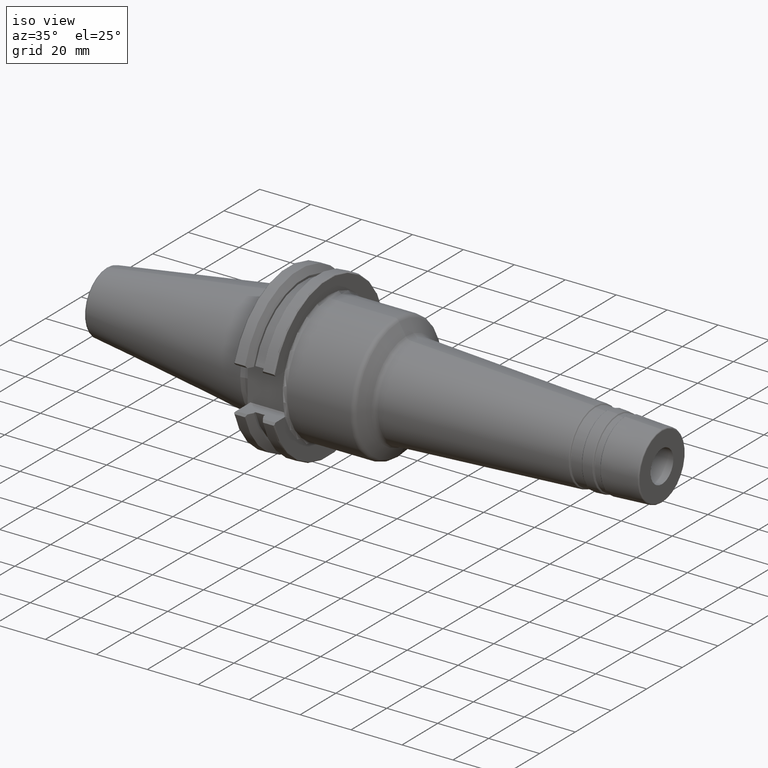
[diagram: clean part render]
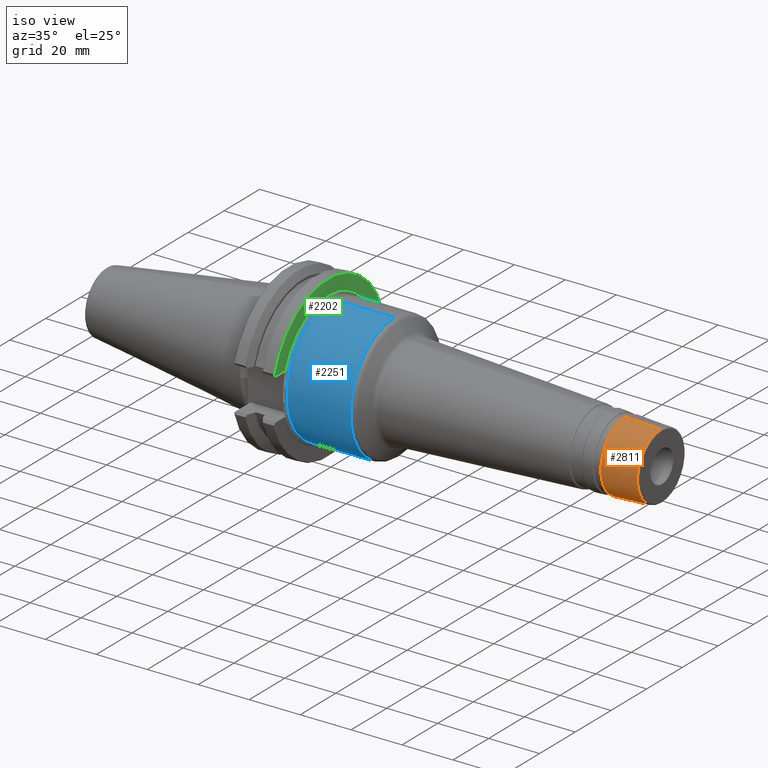
[diagram: same view with three faces highlighted in distinct colors, each labeled with its STEP entity id]
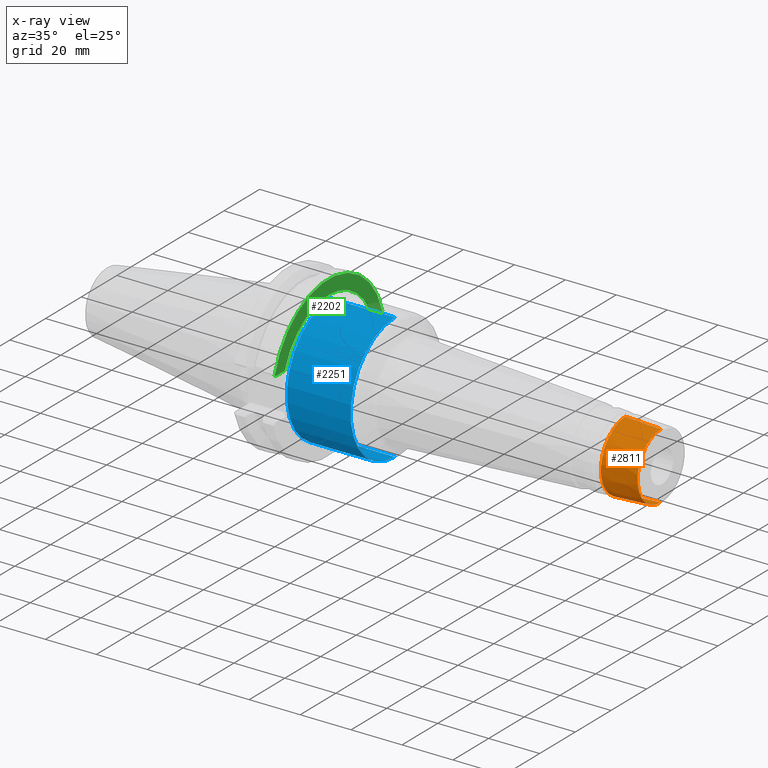
[diagram: x-ray of the same camera — body ghosted, the three highlighted faces saturated]
A machine part, iso view with three faces highlighted in distinct colors.
The next image is the same camera in x-ray (body ghosted, the three faces saturated) — at least one of them is partly hidden behind the body in this view.
Their STEP definitions:

[orange] entity #2811 — the highlighted conical surface has half-angle 3 deg.
#625=CARTESIAN_POINT('',(1.356592149338E2,0.E0,0.E0));
#626=DIRECTION('',(-1.E0,0.E0,0.E0));
#627=DIRECTION('',(0.E0,0.E0,-1.E0));
#628=AXIS2_PLACEMENT_3D('',#625,#626,#627);
#630=DIRECTION('',(-9.986295347546E-1,0.E0,-5.233595624294E-2));
#631=VECTOR('',#630,1.391101761050E1);
#632=CARTESIAN_POINT('',(1.495511679781E2,0.E0,-1.302483248402E1));
#633=LINE('',#632,#631);
#634=DIRECTION('',(-9.986295347546E-1,0.E0,5.233595624294E-2));
#635=VECTOR('',#634,1.391101761050E1);
#636=CARTESIAN_POINT('',(1.495511679781E2,0.E0,1.302483248402E1));
#637=LINE('',#636,#635);
#638=CARTESIAN_POINT('',(1.495511679781E2,0.E0,0.E0));
#639=DIRECTION('',(-1.E0,0.E0,0.E0));
#640=DIRECTION('',(0.E0,0.E0,-1.E0));
#641=AXIS2_PLACEMENT_3D('',#638,#639,#640);
#1729=CARTESIAN_POINT('',(1.495511679781E2,0.E0,-1.302483248402E1));
#1731=VERTEX_POINT('',#1729);
#1732=CARTESIAN_POINT('',(1.356592149338E2,0.E0,-1.375287889298E1));
#1733=VERTEX_POINT('',#1732);
#1785=CARTESIAN_POINT('',(1.495511679781E2,0.E0,1.302483248402E1));
#1787=VERTEX_POINT('',#1785);
#1788=CARTESIAN_POINT('',(1.356592149338E2,0.E0,1.375287889298E1));
#1789=VERTEX_POINT('',#1788);
#2797=CARTESIAN_POINT('',(1.426051914560E2,0.E0,0.E0));
#2798=DIRECTION('',(-1.E0,0.E0,0.E0));
#2799=DIRECTION('',(0.E0,0.E0,-1.E0));
#2800=AXIS2_PLACEMENT_3D('',#2797,#2798,#2799);
#2801=CONICAL_SURFACE('',#2800,1.338885568850E1,3.E0);
#2803=ORIENTED_EDGE('',*,*,#2802,.T.);
#2804=ORIENTED_EDGE('',*,*,#2792,.T.);
#2806=ORIENTED_EDGE('',*,*,#2805,.F.);
#2808=ORIENTED_EDGE('',*,*,#2807,.F.);
#2809=EDGE_LOOP('',(#2803,#2804,#2806,#2808));
#2810=FACE_OUTER_BOUND('',#2809,.F.);
#2811=ADVANCED_FACE('',(#2810),#2801,.T.);
#629=CIRCLE('',#628,1.375287889298E1);
#642=CIRCLE('',#641,1.302483248402E1);
#2792=EDGE_CURVE('',#1733,#1789,#629,.T.);
#2802=EDGE_CURVE('',#1731,#1733,#633,.T.);
#2805=EDGE_CURVE('',#1787,#1789,#637,.T.);
#2807=EDGE_CURVE('',#1731,#1787,#642,.T.);

[blue] entity #2251 — the highlighted cylindrical surface (partial cylindrical patch) has radius 24.75 mm, axis along (1, 0, 0).
#240=CARTESIAN_POINT('',(2.0075E1,0.E0,0.E0));
#241=DIRECTION('',(-1.E0,0.E0,0.E0));
#242=DIRECTION('',(0.E0,0.E0,-1.E0));
#243=AXIS2_PLACEMENT_3D('',#240,#241,#242);
#250=DIRECTION('',(-1.E0,0.E0,0.E0));
#251=VECTOR('',#250,2.503719834631E1);
#252=CARTESIAN_POINT('',(4.511219834631E1,0.E0,-2.475E1));
#253=LINE('',#252,#251);
#254=DIRECTION('',(-1.E0,0.E0,0.E0));
#255=VECTOR('',#254,2.503719834631E1);
#256=CARTESIAN_POINT('',(4.511219834631E1,0.E0,2.475E1));
#257=LINE('',#256,#255);
#258=CARTESIAN_POINT('',(4.511219834631E1,0.E0,0.E0));
#259=DIRECTION('',(-1.E0,0.E0,0.E0));
#260=DIRECTION('',(0.E0,0.E0,-1.E0));
#261=AXIS2_PLACEMENT_3D('',#258,#259,#260);
#1770=CARTESIAN_POINT('',(4.511219834631E1,0.E0,-2.475E1));
#1771=VERTEX_POINT('',#1770);
#1772=CARTESIAN_POINT('',(2.0075E1,0.E0,-2.475E1));
#1773=VERTEX_POINT('',#1772);
#1826=CARTESIAN_POINT('',(4.511219834631E1,0.E0,2.475E1));
#1827=VERTEX_POINT('',#1826);
#1828=CARTESIAN_POINT('',(2.0075E1,0.E0,2.475E1));
#1829=VERTEX_POINT('',#1828);
#2237=CARTESIAN_POINT('',(1.25275E1,0.E0,0.E0));
#2238=DIRECTION('',(1.E0,0.E0,0.E0));
#2239=DIRECTION('',(0.E0,0.E0,1.E0));
#2240=AXIS2_PLACEMENT_3D('',#2237,#2238,#2239);
#2241=CYLINDRICAL_SURFACE('',#2240,2.475E1);
#2243=ORIENTED_EDGE('',*,*,#2242,.T.);
#2244=ORIENTED_EDGE('',*,*,#2228,.T.);
#2246=ORIENTED_EDGE('',*,*,#2245,.F.);
#2248=ORIENTED_EDGE('',*,*,#2247,.F.);
#2249=EDGE_LOOP('',(#2243,#2244,#2246,#2248));
#2250=FACE_OUTER_BOUND('',#2249,.F.);
#2251=ADVANCED_FACE('',(#2250),#2241,.T.);
#244=CIRCLE('',#243,2.475E1);
#262=CIRCLE('',#261,2.475E1);
#2228=EDGE_CURVE('',#1773,#1829,#244,.T.);
#2242=EDGE_CURVE('',#1771,#1773,#253,.T.);
#2245=EDGE_CURVE('',#1827,#1829,#257,.T.);
#2247=EDGE_CURVE('',#1771,#1827,#262,.T.);

[green] entity #2202 — the highlighted planar face has unit normal (-1, 0, 0).
#160=DIRECTION('',(1.635560049325E-14,0.E0,-1.E0));
#161=VECTOR('',#160,1.520518660373E0);
#162=CARTESIAN_POINT('',(1.9075E1,2.5E1,7.69E0));
#163=LINE('',#162,#161);
#220=CARTESIAN_POINT('',(1.9075E1,0.E0,0.E0));
#221=DIRECTION('',(1.E0,0.E0,0.E0));
#222=DIRECTION('',(0.E0,9.708737864078E-1,2.395915083350E-1));
#223=AXIS2_PLACEMENT_3D('',#220,#221,#222);
#225=CARTESIAN_POINT('',(1.9075E1,0.E0,0.E0));
#226=DIRECTION('',(1.E0,0.E0,0.E0));
#227=DIRECTION('',(0.E0,0.E0,1.E0));
#228=AXIS2_PLACEMENT_3D('',#225,#226,#227);
#1158=DIRECTION('',(0.E0,1.E0,0.E0));
#1159=VECTOR('',#1158,5.337300081788E0);
#1160=CARTESIAN_POINT('',(1.9075E1,-2.975013277281E1,8.19E0));
#1161=LINE('',#1160,#1159);
#1260=DIRECTION('',(0.E0,1.E0,0.E0));
#1261=VECTOR('',#1260,4.250132772813E0);
#1262=CARTESIAN_POINT('',(1.9075E1,2.55E1,8.19E0));
#1263=LINE('',#1262,#1261);
#1280=DIRECTION('',(0.E0,5.973640433790E-1,8.019701987468E-1));
#1281=VECTOR('',#1280,6.967374391763E-1);
#1282=CARTESIAN_POINT('',(1.9075E1,2.975013277281E1,8.19E0));
#1283=LINE('',#1282,#1281);
#1291=CARTESIAN_POINT('',(1.9075E1,0.E0,0.E0));
#1292=DIRECTION('',(1.E0,0.E0,0.E0));
#1293=DIRECTION('',(0.E0,9.604246720989E-1,2.785398521286E-1));
#1294=AXIS2_PLACEMENT_3D('',#1291,#1292,#1293);
#1313=DIRECTION('',(0.E0,5.973640433790E-1,-8.019701987468E-1));
#1314=VECTOR('',#1313,6.967374391763E-1);
#1315=CARTESIAN_POINT('',(1.9075E1,-3.016633866665E1,8.748762662571E0));
#1316=LINE('',#1315,#1314);
#1469=DIRECTION('',(0.E0,7.071067811865E-1,7.071067811865E-1));
#1470=VECTOR('',#1469,7.071067811865E-1);
#1471=CARTESIAN_POINT('',(1.9075E1,2.5E1,7.69E0));
#1472=LINE('',#1471,#1470);
#1690=CARTESIAN_POINT('',(1.9075E1,2.55E1,8.19E0));
#1691=CARTESIAN_POINT('',(1.9075E1,2.975013277281E1,8.19E0));
#1692=VERTEX_POINT('',#1690);
#1693=VERTEX_POINT('',#1691);
#1698=CARTESIAN_POINT('',(1.9075E1,3.016633866665E1,8.748762662570E0));
#1699=VERTEX_POINT('',#1698);
#1702=CARTESIAN_POINT('',(1.9075E1,-3.016633866665E1,8.748762662571E0));
#1703=CARTESIAN_POINT('',(1.9075E1,-2.975013277281E1,8.19E0));
#1704=VERTEX_POINT('',#1702);
#1705=VERTEX_POINT('',#1703);
#1710=CARTESIAN_POINT('',(1.9075E1,2.5E1,7.69E0));
#1711=VERTEX_POINT('',#1710);
#1834=CARTESIAN_POINT('',(1.9075E1,2.5E1,6.169481339627E0));
#1836=VERTEX_POINT('',#1834);
#1843=CARTESIAN_POINT('',(1.9075E1,-2.441283269103E1,8.19E0));
#1845=VERTEX_POINT('',#1843);
#1856=CARTESIAN_POINT('',(1.9075E1,0.E0,2.575E1));
#1857=VERTEX_POINT('',#1856);
#2178=CARTESIAN_POINT('',(1.9075E1,-5.E1,-5.E1));
#2179=DIRECTION('',(-1.E0,0.E0,0.E0));
#2180=DIRECTION('',(0.E0,0.E0,1.E0));
#2181=AXIS2_PLACEMENT_3D('',#2178,#2179,#2180);
#2182=PLANE('',#2181);
#2184=ORIENTED_EDGE('',*,*,#2183,.T.);
#2186=ORIENTED_EDGE('',*,*,#2185,.T.);
#2188=ORIENTED_EDGE('',*,*,#2187,.F.);
#2190=ORIENTED_EDGE('',*,*,#2189,.F.);
#2192=ORIENTED_EDGE('',*,*,#2191,.F.);
#2194=ORIENTED_EDGE('',*,*,#2193,.F.);
#2196=ORIENTED_EDGE('',*,*,#2195,.F.);
#2198=ORIENTED_EDGE('',*,*,#2197,.F.);
#2199=ORIENTED_EDGE('',*,*,#2078,.T.);
#2200=EDGE_LOOP('',(#2184,#2186,#2188,#2190,#2192,#2194,#2196,#2198,#2199));
#2201=FACE_OUTER_BOUND('',#2200,.F.);
#2202=ADVANCED_FACE('',(#2201),#2182,.F.);
#224=CIRCLE('',#223,2.575E1);
#229=CIRCLE('',#228,2.575E1);
#1295=CIRCLE('',#1294,3.140937498068E1);
#2078=EDGE_CURVE('',#1711,#1836,#163,.T.);
#2183=EDGE_CURVE('',#1836,#1857,#224,.T.);
#2185=EDGE_CURVE('',#1857,#1845,#229,.T.);
#2187=EDGE_CURVE('',#1705,#1845,#1161,.T.);
#2189=EDGE_CURVE('',#1704,#1705,#1316,.T.);
#2191=EDGE_CURVE('',#1699,#1704,#1295,.T.);
#2193=EDGE_CURVE('',#1693,#1699,#1283,.T.);
#2195=EDGE_CURVE('',#1692,#1693,#1263,.T.);
#2197=EDGE_CURVE('',#1711,#1692,#1472,.T.);